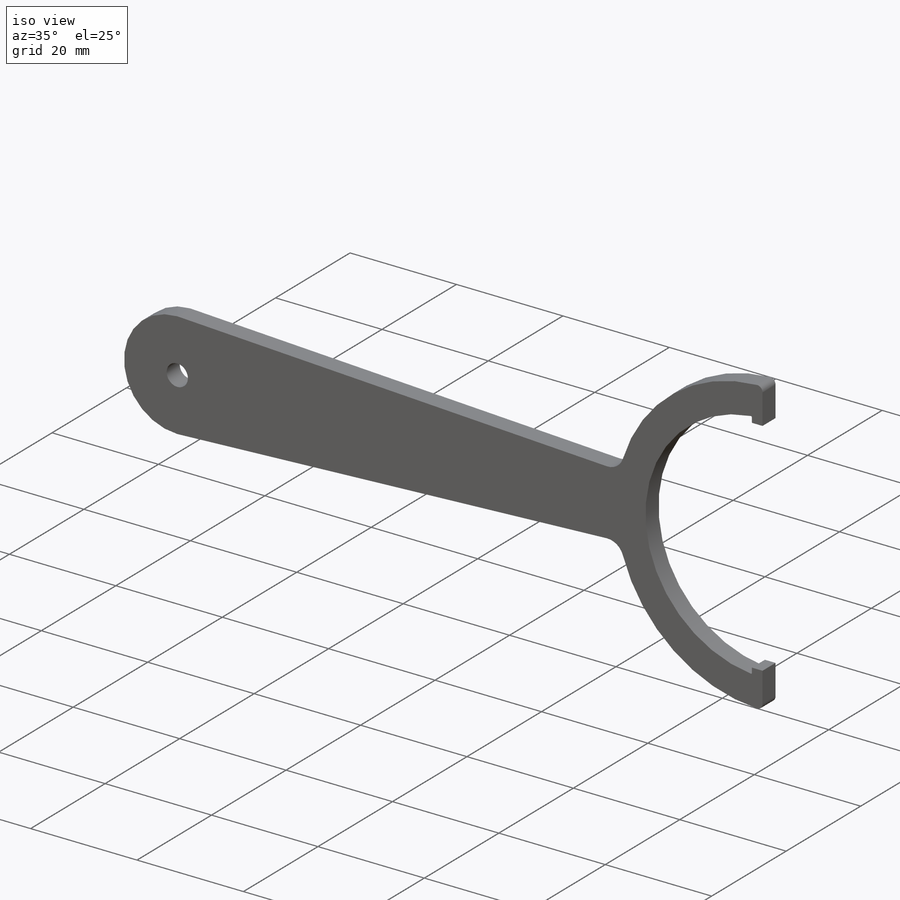
[diagram: iso view]
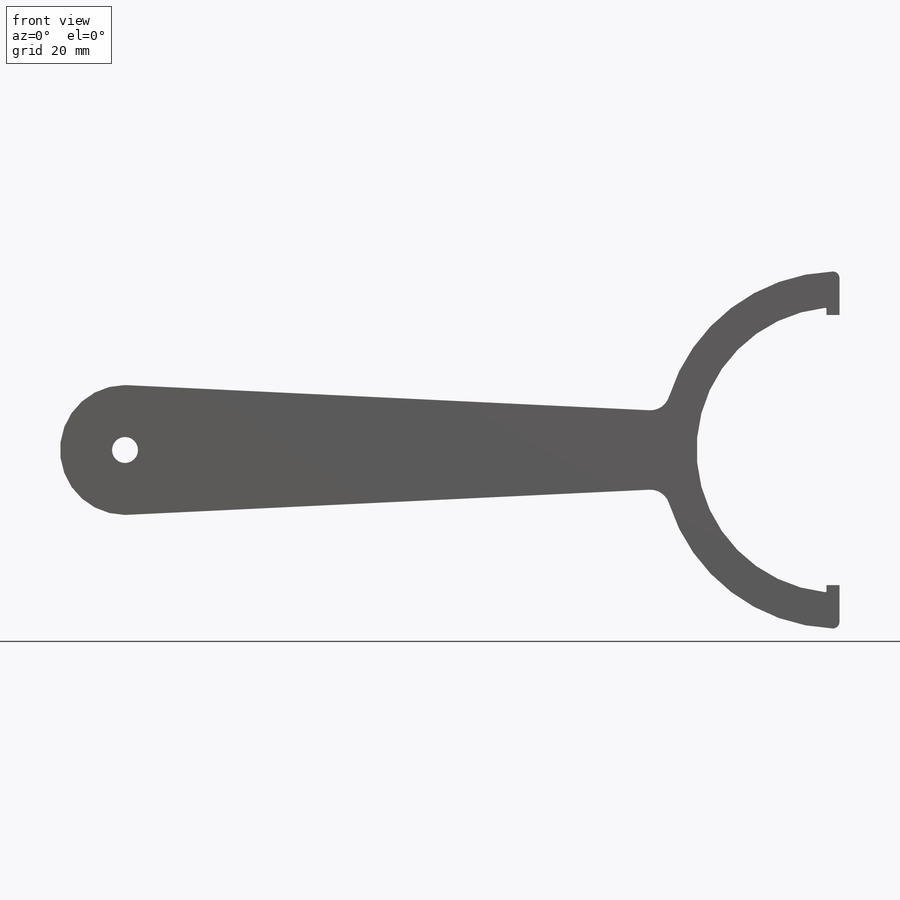
[diagram: front view]
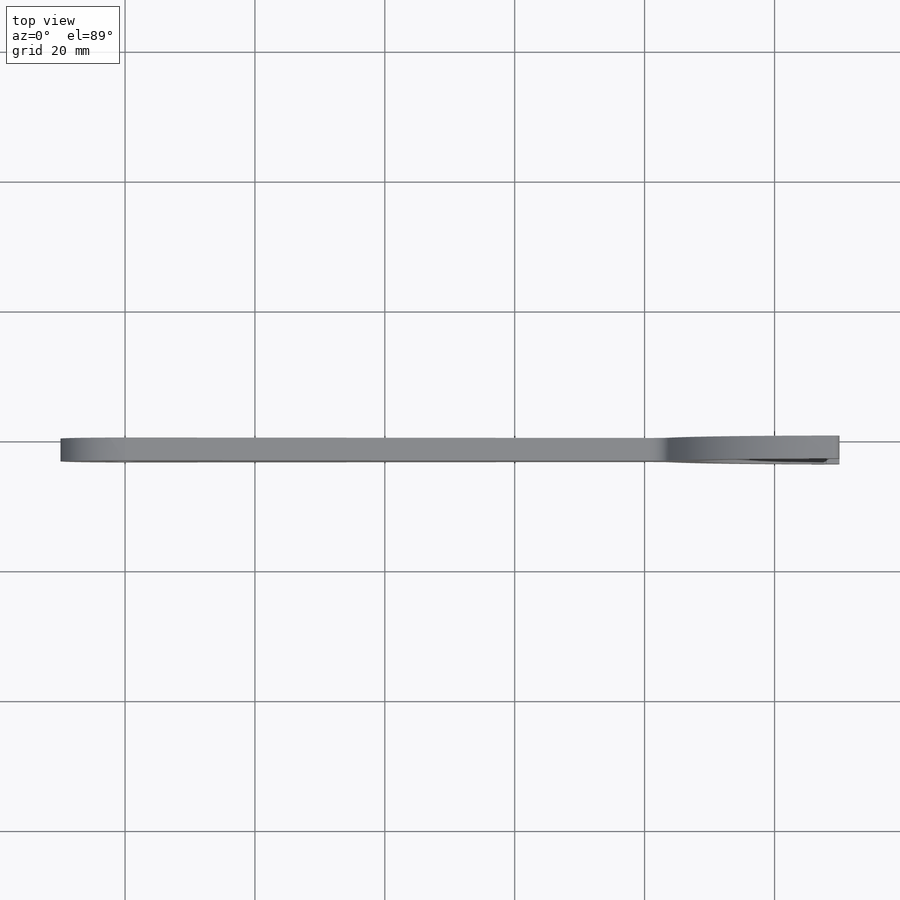
[diagram: top view]
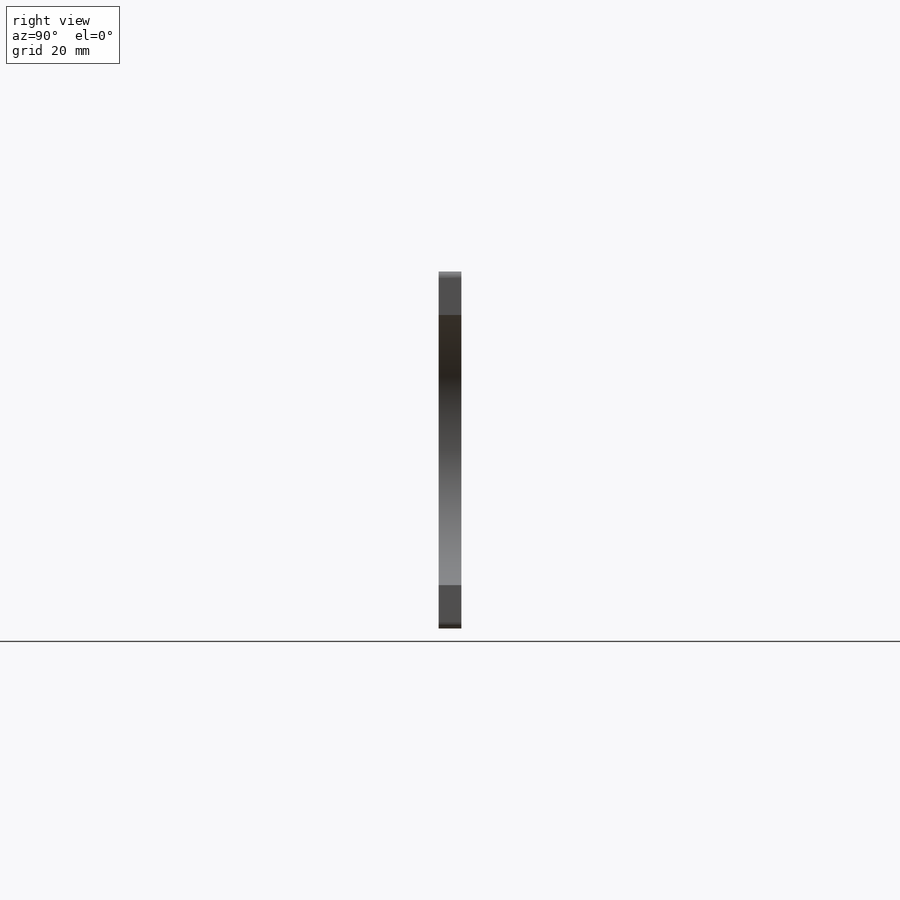
[diagram: right view]
SOLIDWORKS PART (.sldprt)
format: sldprt  version: not decoded by parser v0  size: 180,224 bytes
history: native  units: mm
features: fillet x6, plane x3, sketch x2, material x1, extrude x1, cut_extrude x1 (+14 scaffold rows collapsed)
feature tree (28):
  scaffold x14  (default folders/planes/origin — collapsed)
  material  "Matériau <non spécifié>"
  plane  "Plan de face"
  plane  "Plan de dessus"
  plane  "Plan de droite"
  sketch  "Esquisse1"  dims[c1.D1=20.0mm c1.D2=55.0mm c1.D3=20.0mm c1.D4=44.0mm c1.D7=44.0mm c2.D3=110.0mm c2.D4=6.0mm c2.D5=2.0mm c2.D6=3.0mm c2.D7=1.0mm]
  extrude  "Extrusion1"  Depth=3.5mm
  fillet  "Congé1"  Radius=3mm
  fillet  "Congé2"  Radius=3mm
  fillet  "Congé3"  Radius=1mm
  fillet  "Congé4"  Radius=1mm
  fillet  "Congé7"  Radius=0.2mm
  fillet  "Congé8"  Radius=0.2mm
  sketch  "Esquisse2"  dims[D1=4.0mm]
  cut_extrude  "Extrusion2"  Depth=3.5mm
decode coverage: 10 of 10 modeling features carry decoded parameters
note: suppression state not decoded; provenance and decode notes live in map.json
